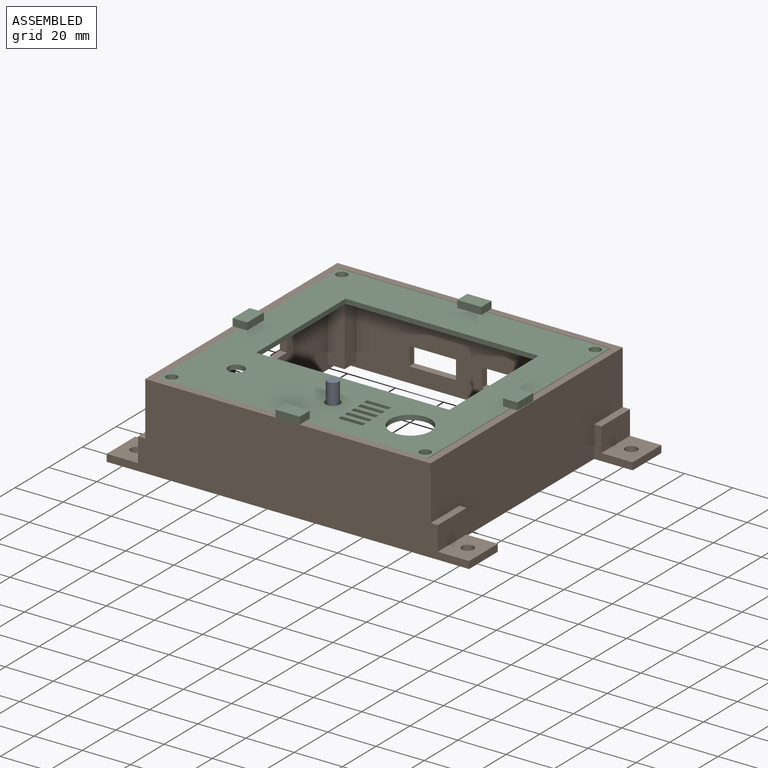
[diagram: assembled view]
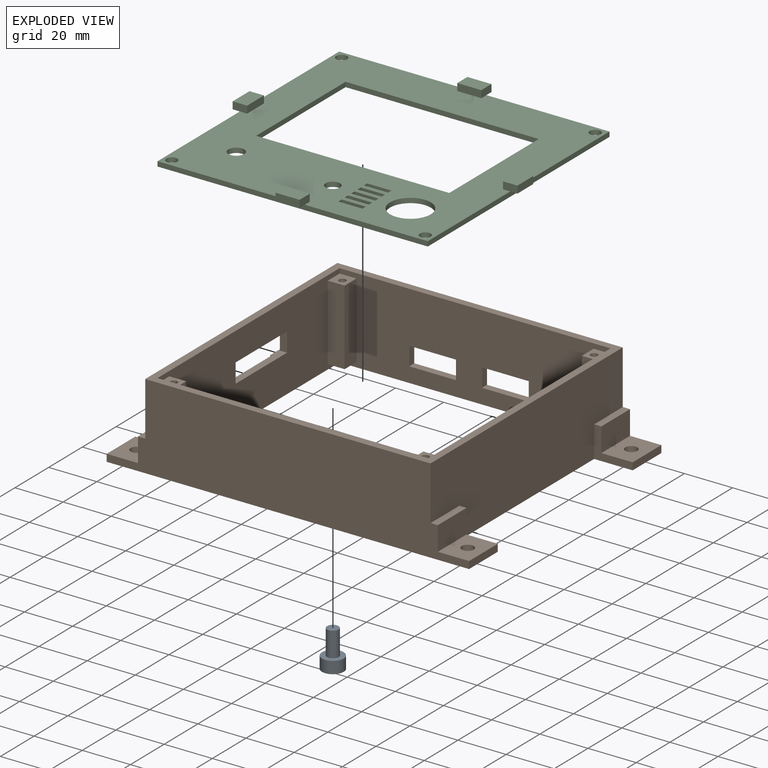
[diagram: exploded view]
GUIDED TOUR — MATED ASSEMBLY (Onshape document 442986f70ca245d1ac6d4e2b, AutoMate assembly 442986f70ca245d1ac6d4e2b_402701deb49ca6270d49aa02_2382e2a612e0fbf93cd27774_default)

This assembly has 3 components, labeled P0..P2 below (a component is one placed occurrence of a part; the same part can appear more than once), held together by 2 mates. A mate is a constraint between two components; its type names the relative motion it leaves free:
  PARALLEL — keeps the two listed directions parallel.
Axis/direction vectors are unit vectors and 'through' points are millimeter coordinates, both in the assembly's world frame.

MATES
  1. PARALLEL "Top Cover to case-Parallel 1": P2 <-> P1, direction (0.000, 0.000, 1.000) through (-104.29, -60.68, 34.66) mm
  2. PARALLEL "Parallel 2": P0 <-> P2, direction (0.000, 0.000, 1.000) through (-44.29, -42.38, 32.66) mm

ASSEMBLY ORDER
  1. P1 — the base component [order verified]
  2. P2 [order verified]
  3. P0 [order verified]
Order-tag legend:
  [order verified] — this step's position reverses a verified removal order: the component was checked to insert without passing through the ones already placed.

Of the 3 components, 3 carry the full construction recipe — the FeatureScript program that regenerates the part's solid from scratch; the rest are supplied as boundary geometry only.
Each toured component is shown spotlighted twice — in the assembled view, then in the exploded view, where a leader line traces a displaced component back to its assembled socket (saturated green if recipe-attached, orange if geometry-only; every other component desaturated gray) — followed by its recipe or geometry summary and the mates that hold it.
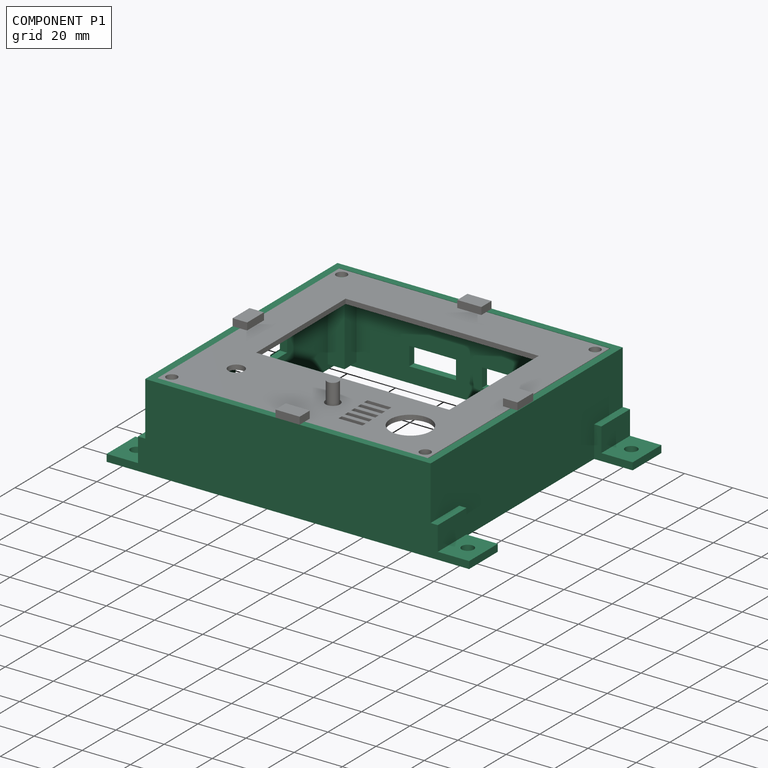
[diagram: component P1 — assembled]
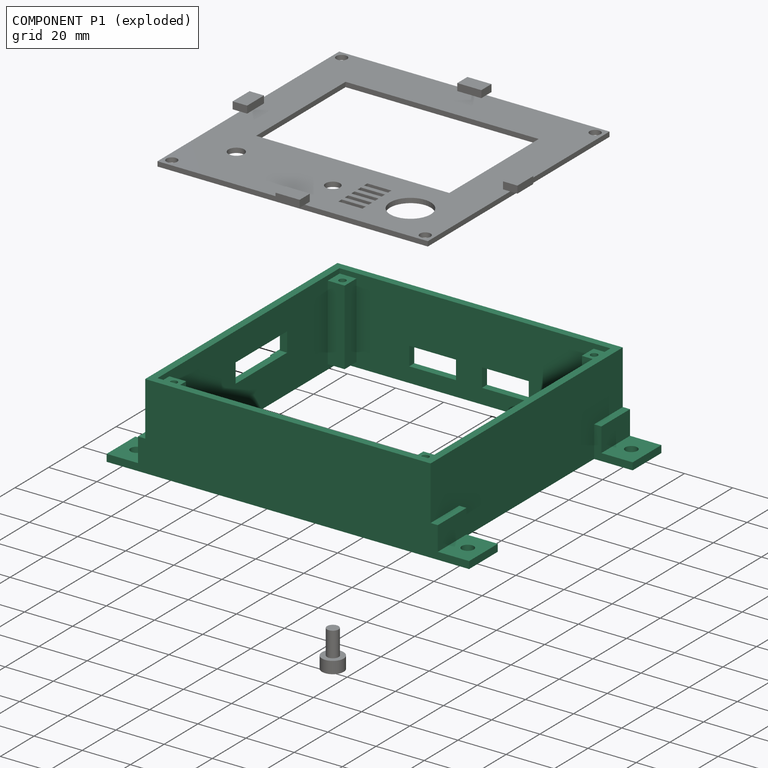
[diagram: component P1 — exploded]
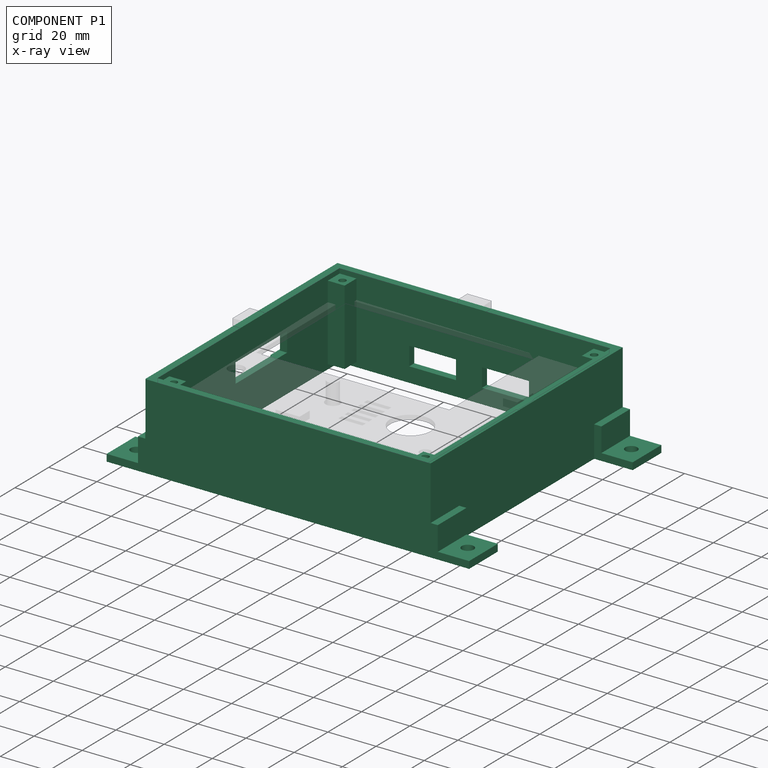
[diagram: component P1 — x-ray view]
COMPONENT P1 — recipe-attached (CADFS 00519487, mesh-verified: the recipe's output STEP matches this component's geometry to below the mesh-comparison resolution (tessellation chordal tolerance ~0.288 mm)).
Held by: PARALLEL mate "Top Cover to case-Parallel 1" to P2.
Construction recipe (FeatureScript — the CAD program that rebuilds this solid; sketch coordinates are in the units given by the * unit suffixes, e.g. mm):

FeatureScript 2581;
import(path : "onshape/std/geometry.fs", version : "2581.0");
import(path : "onshape/std/common.fs", version : "2581.0");
const mm = millimeter;
const VERTEX = EntityType.VERTEX;
const EDGE = EntityType.EDGE;
const FACE = EntityType.FACE;
const BODY = EntityType.BODY;
function v(x, y){return vector(x, y);}
function OD(order){return orderDisambiguation(order);}
function OSD(set){return originalSetDisambiguation(set);}
function TD(topology){return topologyDisambiguation(topology);}
function TDD(query){return trueDependencyDisambiguation(query);}
function sQuery(a, b, c) {return sketchEntityQuery(a, b, c);}

annotation { "Feature Type Name" : "Feature", "Feature Type Description" : "" }
export const myFeature = defineFeature(function(context is Context, id is Id, definition is map)
    precondition{}
    {
        {
            var Q0;
            Q0=qCreatedBy(makeId("Top.planeOp"),FACE);
            var sketch = newSketch(context, id + "F0", { "sketchPlane" : qUnion([Q0])});
            skLineSegment(sketch, "E0.bottom", {"start": v(0, 0) * mm, "end": v(112.5, 0) * mm});
            skLineSegment(sketch, "E0.top", {"start": v(0, 108) * mm, "end": v(112.5, 108) * mm});
            skLineSegment(sketch, "E0.left", {"start": v(0, 0) * mm, "end": v(0, 108) * mm});
            skLineSegment(sketch, "E0.right", {"start": v(112.5, 0) * mm, "end": v(112.5, 108) * mm});
            skLineSegment(sketch, "E1.bottom", {"start": v(-3, -3) * mm, "end": v(115.5, -3) * mm});
            skLineSegment(sketch, "E1.top", {"start": v(-3, 111) * mm, "end": v(115.5, 111) * mm});
            skLineSegment(sketch, "E1.left", {"start": v(-3, -3) * mm, "end": v(-3, 111) * mm});
            skLineSegment(sketch, "E1.right", {"start": v(115.5, -3) * mm, "end": v(115.5, 111) * mm});
            skSolve(sketch);
        }
        {
            var Q0;
            Q0 = qSketchRegion(id + "F0", true);
            var Q1;
            Q1=makeQuery(id+"F0.imprint","IMPRINT",FACE,{"disambiguationData":[TD([[makeQuery(id+"F0.imprint","IMPRINT",EDGE,{"derivedFrom":sQuery(id+"F0.wireOp",EDGE,"5UW27vY8-DZkX-9mT5-oeWg-O9DarPSECfU4.bottom")}),-1.0]])]});
            var Q2;
            Q2=makeQuery(id+"F0.imprint","IMPRINT",FACE,{"disambiguationData":[TD([[makeQuery(id+"F0.imprint","IMPRINT",EDGE,{"derivedFrom":sQuery(id+"F0.wireOp",EDGE,"emjWjVMJ-dW8g-Ee0e-WItk-pn7yrFhIKDN6.bottom")}),1.0]])]});
            var Q3;
            Q3=makeQuery(id+"F0.imprint","IMPRINT",FACE,{"disambiguationData":[TD([[makeQuery(id+"F0.imprint","IMPRINT",EDGE,{"derivedFrom":sQuery(id+"F0.wireOp",EDGE,"Jp5ZSupj-YRPa-vJQM-HpLv-n2ZM76CLiCyT.bottom")}),1.0]])]});
            var Q4;
            Q4=makeQuery(id+"F0.imprint","IMPRINT",FACE,{"disambiguationData":[TD([[makeQuery(id+"F0.imprint","IMPRINT",EDGE,{"derivedFrom":sQuery(id+"F0.wireOp",EDGE,"ox3d0DqL-n6A3-UaFx-j0JZ-jM5fEP68q14y.bottom")}),-1.0]])]});
            extrude(context, id + "F1", {"entities" : qUnion([Q0, Q1, Q2, Q3, Q4]), "depth" : 35.36 * mm, "offsetDistance" : 25 * mm});
        }
        {
            var Q0;
            Q0=makeQuery(id+"F1.opExtrude","CAP_FACE",FACE,{"disambiguationData":[OSD([sQuery(id+"F0.wireOp",EDGE,"E0.bottom"),sQuery(id+"F0.wireOp",EDGE,"E0.top"),sQuery(id+"F0.wireOp",EDGE,"E0.left"),sQuery(id+"F0.wireOp",EDGE,"E0.right"),sQuery(id+"F0.wireOp",EDGE,"E1.bottom"),sQuery(id+"F0.wireOp",EDGE,"E1.top"),sQuery(id+"F0.wireOp",EDGE,"E1.left"),sQuery(id+"F0.wireOp",EDGE,"E1.right")])],"isStart":false});
            var sketch = newSketch(context, id + "F2", { "sketchPlane" : qUnion([Q0])});
            skLineSegment(sketch, "E2.bottom", {"start": v(0, 108) * mm, "end": v(7, 108) * mm});
            skLineSegment(sketch, "E2.top", {"start": v(0, 101) * mm, "end": v(7, 101) * mm});
            skLineSegment(sketch, "E2.left", {"start": v(0, 108) * mm, "end": v(0, 101) * mm});
            skLineSegment(sketch, "E2.right", {"start": v(7, 108) * mm, "end": v(7, 101) * mm});
            skLineSegment(sketch, "E3.bottom", {"start": v(112.5, 108) * mm, "end": v(105.5, 108) * mm});
            skLineSegment(sketch, "E3.top", {"start": v(112.5, 101) * mm, "end": v(105.5, 101) * mm});
            skLineSegment(sketch, "E3.left", {"start": v(112.5, 108) * mm, "end": v(112.5, 101) * mm});
            skLineSegment(sketch, "E3.right", {"start": v(105.5, 108) * mm, "end": v(105.5, 101) * mm});
            skLineSegment(sketch, "E4.bottom", {"start": v(112.5, 0) * mm, "end": v(105.5, 0) * mm});
            skLineSegment(sketch, "E4.top", {"start": v(112.5, 7) * mm, "end": v(105.5, 7) * mm});
            skLineSegment(sketch, "E4.left", {"start": v(112.5, 0) * mm, "end": v(112.5, 7) * mm});
            skLineSegment(sketch, "E4.right", {"start": v(105.5, 0) * mm, "end": v(105.5, 7) * mm});
            skLineSegment(sketch, "E5.bottom", {"start": v(0, 0) * mm, "end": v(7, 0) * mm});
            skLineSegment(sketch, "E5.top", {"start": v(0, 7) * mm, "end": v(7, 7) * mm});
            skLineSegment(sketch, "E5.left", {"start": v(0, 0) * mm, "end": v(0, 7) * mm});
            skLineSegment(sketch, "E5.right", {"start": v(7, 0) * mm, "end": v(7, 7) * mm});
            skSolve(sketch);
        }
        {
            var Q0;
            Q0=makeQuery(id+"F2.imprint","IMPRINT",FACE,{"disambiguationData":[TD([[makeQuery(id+"F2.imprint","IMPRINT",EDGE,{"derivedFrom":sQuery(id+"F2.wireOp",EDGE,"E2.bottom")}),-1.0]])]});
            var Q1;
            Q1=makeQuery(id+"F2.imprint","IMPRINT",FACE,{"disambiguationData":[TD([[makeQuery(id+"F2.imprint","IMPRINT",EDGE,{"derivedFrom":sQuery(id+"F2.wireOp",EDGE,"E3.bottom")}),-1.0]])]});
            var Q2;
            Q2=makeQuery(id+"F2.imprint","IMPRINT",FACE,{"disambiguationData":[TD([[makeQuery(id+"F2.imprint","IMPRINT",EDGE,{"derivedFrom":sQuery(id+"F2.wireOp",EDGE,"E4.bottom")}),1.0]])]});
            var Q3;
            Q3=makeQuery(id+"F2.imprint","IMPRINT",FACE,{"disambiguationData":[TD([[makeQuery(id+"F2.imprint","IMPRINT",EDGE,{"derivedFrom":sQuery(id+"F2.wireOp",EDGE,"E5.bottom")}),1.0]])]});
            extrude(context, id + "F3", {"entities" : qUnion([Q0, Q1, Q2, Q3]), "operationType" : NewBodyOperationType.ADD, "oppositeDirection" : true, "depth" : 33.36 * mm, "offsetDistance" : 25 * mm, "hasSecondDirection" : true, "secondDirectionOppositeDirection" : true, "secondDirectionDepth" : 2 * mm});
        }
        {
            var Q0;
            Q0=makeQuery(id+"F3.opExtrude","CAP_FACE",FACE,{"disambiguationData":[OSD([sQuery(id+"F2.wireOp",EDGE,"E2.bottom"),sQuery(id+"F2.wireOp",EDGE,"E2.top"),sQuery(id+"F2.wireOp",EDGE,"E2.left"),sQuery(id+"F2.wireOp",EDGE,"E2.right")])],"isStart":true});
            var sketch = newSketch(context, id + "F4", { "sketchPlane" : qUnion([Q0])});
            skCircle(sketch, "E6", {"center": v(4, 104) * mm, "radius": 1.45 * mm});
            skCircle(sketch, "E7", {"center": v(108.5, 104) * mm, "radius": 1.45 * mm});
            skCircle(sketch, "E8", {"center": v(4, 4) * mm, "radius": 1.45 * mm});
            skCircle(sketch, "E9", {"center": v(108.5, 4) * mm, "radius": 1.45 * mm});
            skSolve(sketch);
        }
        {
            var Q0;
            Q0=makeQuery(id+"F4.imprint","IMPRINT",FACE,{"disambiguationData":[TD([[makeQuery(id+"F4.imprint","IMPRINT",EDGE,{"derivedFrom":sQuery(id+"F4.wireOp",EDGE,"E6")}),1.0]])]});
            var Q1;
            Q1=makeQuery(id+"F4.imprint","IMPRINT",FACE,{"disambiguationData":[TD([[makeQuery(id+"F4.imprint","IMPRINT",EDGE,{"derivedFrom":sQuery(id+"F4.wireOp",EDGE,"E7")}),1.0]])]});
            var Q2;
            Q2=makeQuery(id+"F4.imprint","IMPRINT",FACE,{"disambiguationData":[TD([[makeQuery(id+"F4.imprint","IMPRINT",EDGE,{"derivedFrom":sQuery(id+"F4.wireOp",EDGE,"E8")}),1.0]])]});
            var Q3;
            Q3=makeQuery(id+"F4.imprint","IMPRINT",FACE,{"disambiguationData":[TD([[makeQuery(id+"F4.imprint","IMPRINT",EDGE,{"derivedFrom":sQuery(id+"F4.wireOp",EDGE,"E9")}),1.0]])]});
            extrude(context, id + "F5", {"entities" : qUnion([Q0, Q1, Q2, Q3]), "operationType" : NewBodyOperationType.REMOVE, "endBound" : BoundingType.THROUGH_ALL, "oppositeDirection" : true, "depth" : 25 * mm, "offsetDistance" : 25 * mm});
        }
        {
            var Q0;
            Q0=makeQuery(id+"F1.opExtrude","SWEPT_FACE",FACE,{"disambiguationData":[OSD([sQuery(id+"F0.wireOp",EDGE,"E1.left")])]});
            var sketch = newSketch(context, id + "F6", { "sketchPlane" : qUnion([Q0])});
            skLineSegment(sketch, "E10.bottom", {"start": v(-76.87, 23.54) * mm, "end": v(-46.36, 23.54) * mm});
            skLineSegment(sketch, "E10.top", {"start": v(-76.87, 15.54) * mm, "end": v(-46.36, 15.54) * mm});
            skLineSegment(sketch, "E10.left", {"start": v(-76.87, 23.54) * mm, "end": v(-76.87, 15.54) * mm});
            skLineSegment(sketch, "E10.right", {"start": v(-46.36, 23.54) * mm, "end": v(-46.36, 15.54) * mm});
            skSolve(sketch);
        }
        {
            var Q0;
            Q0=makeQuery(id+"F6.imprint","IMPRINT",FACE,{"disambiguationData":[TD([[makeQuery(id+"F6.imprint","IMPRINT",EDGE,{"derivedFrom":sQuery(id+"F6.wireOp",EDGE,"E10.bottom")}),-1.0]])]});
            extrude(context, id + "F7", {"entities" : qUnion([Q0]), "operationType" : NewBodyOperationType.REMOVE, "endBound" : BoundingType.UP_TO_NEXT, "oppositeDirection" : true, "depth" : 3 * mm, "offsetDistance" : 25 * mm});
        }
        {
            var Q0;
            Q0=makeQuery(id+"F1.opExtrude","SWEPT_FACE",FACE,{"disambiguationData":[OSD([sQuery(id+"F0.wireOp",EDGE,"E1.top")])]});
            var sketch = newSketch(context, id + "F8", { "sketchPlane" : qUnion([Q0])});
            skLineSegment(sketch, "E11.bottom", {"start": v(-48.32, 13.96) * mm, "end": v(-28.92, 13.96) * mm});
            skLineSegment(sketch, "E11.top", {"start": v(-48.32, 6.26) * mm, "end": v(-28.92, 6.26) * mm});
            skLineSegment(sketch, "E11.left", {"start": v(-48.32, 13.96) * mm, "end": v(-48.32, 6.26) * mm});
            skLineSegment(sketch, "E11.right", {"start": v(-28.92, 13.96) * mm, "end": v(-28.92, 6.26) * mm});
            skLineSegment(sketch, "E12.bottom", {"start": v(-78.53, 13.96) * mm, "end": v(-59.13, 13.96) * mm});
            skLineSegment(sketch, "E12.top", {"start": v(-78.53, 6.26) * mm, "end": v(-59.13, 6.26) * mm});
            skLineSegment(sketch, "E12.left", {"start": v(-78.53, 13.96) * mm, "end": v(-78.53, 6.26) * mm});
            skLineSegment(sketch, "E12.right", {"start": v(-59.13, 13.96) * mm, "end": v(-59.13, 6.26) * mm});
            skSolve(sketch);
        }
        {
            var Q0;
            Q0=makeQuery(id+"F8.imprint","IMPRINT",FACE,{"disambiguationData":[TD([[makeQuery(id+"F8.imprint","IMPRINT",EDGE,{"derivedFrom":sQuery(id+"F8.wireOp",EDGE,"E12.bottom")}),-1.0]])]});
            var Q1;
            Q1=makeQuery(id+"F8.imprint","IMPRINT",FACE,{"disambiguationData":[TD([[makeQuery(id+"F8.imprint","IMPRINT",EDGE,{"derivedFrom":sQuery(id+"F8.wireOp",EDGE,"E11.bottom")}),-1.0]])]});
            extrude(context, id + "F9", {"entities" : qUnion([Q0, Q1]), "operationType" : NewBodyOperationType.REMOVE, "oppositeDirection" : true, "depth" : 3 * mm, "offsetDistance" : 25 * mm});
        }
        {
            var Q0;
            Q0=makeQuery(id+"F1.opExtrude","SWEPT_FACE",FACE,{"disambiguationData":[OSD([sQuery(id+"F0.wireOp",EDGE,"E1.bottom")])]});
            var sketch = newSketch(context, id + "F10", { "sketchPlane" : qUnion([Q0])});
            skLineSegment(sketch, "E13", {"start": v(-19, 3) * mm, "end": v(-6, 3) * mm});
            skLineSegment(sketch, "E14", {"start": v(-6, 3) * mm, "end": v(-6, 13) * mm});
            skLineSegment(sketch, "E15", {"start": v(-6, 13) * mm, "end": v(-3, 13) * mm});
            skLineSegment(sketch, "E16", {"start": v(-19, 3) * mm, "end": v(-19, 0) * mm});
            skLineSegment(sketch, "E17", {"start": v(-19, 0) * mm, "end": v(-3, 0) * mm});
            skLineSegment(sketch, "E18", {"start": v(-3, 13) * mm, "end": v(-3, 0) * mm});
            skSolve(sketch);
        }
        {
            var Q0;
            Q0=makeQuery(id+"F10.imprint","IMPRINT",FACE,{"disambiguationData":[TD([[makeQuery(id+"F10.imprint","IMPRINT",EDGE,{"derivedFrom":sQuery(id+"F10.wireOp",EDGE,"E13")}),-1.0]])]});
            extrude(context, id + "F11", {"entities" : qUnion([Q0]), "operationType" : NewBodyOperationType.ADD, "oppositeDirection" : true, "depth" : 114 * mm, "offsetDistance" : 25 * mm});
        }
        {
            var Q0;
            Q0=makeQuery(id+"F11.boolean.opBoolean","MERGE",FACE,{"derivedFrom":[makeQuery(id+"F1.opExtrude","SWEPT_FACE",FACE,{"disambiguationData":[OSD([sQuery(id+"F0.wireOp",EDGE,"E1.bottom")])]}),makeQuery(id+"F11.opExtrude","CAP_FACE",FACE,{"disambiguationData":[OSD([sQuery(id+"F10.wireOp",EDGE,"E13"),sQuery(id+"F10.wireOp",EDGE,"E14"),sQuery(id+"F10.wireOp",EDGE,"E15"),sQuery(id+"F10.wireOp",EDGE,"E16"),sQuery(id+"F10.wireOp",EDGE,"E17"),sQuery(id+"F10.wireOp",EDGE,"E18")])],"isStart":true})]});
            var sketch = newSketch(context, id + "F12", { "sketchPlane" : qUnion([Q0])});
            skLineSegment(sketch, "E19", {"start": v(115.5, 13) * mm, "end": v(115.5, 0) * mm});
            skLineSegment(sketch, "E20", {"start": v(115.5, 0) * mm, "end": v(131.5, 0) * mm});
            skLineSegment(sketch, "E21", {"start": v(131.5, 0) * mm, "end": v(131.5, 3) * mm});
            skLineSegment(sketch, "E22", {"start": v(131.5, 3) * mm, "end": v(118.5, 3) * mm});
            skLineSegment(sketch, "E23", {"start": v(118.5, 3) * mm, "end": v(118.5, 13) * mm});
            skLineSegment(sketch, "E24", {"start": v(118.5, 13) * mm, "end": v(115.5, 13) * mm});
            skSolve(sketch);
        }
        {
            var Q0;
            Q0=makeQuery(id+"F12.imprint","IMPRINT",FACE,{"disambiguationData":[TD([[makeQuery(id+"F12.imprint","IMPRINT",EDGE,{"derivedFrom":sQuery(id+"F12.wireOp",EDGE,"E19")}),1.0]])]});
            extrude(context, id + "F13", {"entities" : qUnion([Q0]), "operationType" : NewBodyOperationType.ADD, "oppositeDirection" : true, "depth" : 114 * mm, "offsetDistance" : 25 * mm});
        }
        {
            var Q0;
            Q0=makeQuery(id+"F13.boolean.opBoolean","MERGE",FACE,{"derivedFrom":[makeQuery(id+"F11.boolean.opBoolean","MERGE",FACE,{"derivedFrom":[makeQuery(id+"F1.opExtrude","CAP_FACE",FACE,{"disambiguationData":[OSD([sQuery(id+"F0.wireOp",EDGE,"E0.bottom"),sQuery(id+"F0.wireOp",EDGE,"E0.top"),sQuery(id+"F0.wireOp",EDGE,"E0.left"),sQuery(id+"F0.wireOp",EDGE,"E0.right"),sQuery(id+"F0.wireOp",EDGE,"E1.bottom"),sQuery(id+"F0.wireOp",EDGE,"E1.top"),sQuery(id+"F0.wireOp",EDGE,"E1.left"),sQuery(id+"F0.wireOp",EDGE,"E1.right")])],"isStart":true}),makeQuery(id+"F11.opExtrude","SWEPT_FACE",FACE,{"disambiguationData":[OSD([sQuery(id+"F10.wireOp",EDGE,"E17")])]})]}),makeQuery(id+"F13.opExtrude","SWEPT_FACE",FACE,{"disambiguationData":[OSD([sQuery(id+"F12.wireOp",EDGE,"E20")])]})]});
            var sketch = newSketch(context, id + "F14", { "sketchPlane" : qUnion([Q0])});
            skSolve(sketch);
        }
        {
            var Q0;
            Q0=makeQuery(id+"F14.imprint","IMPRINT",FACE,{"disambiguationData":[TD([[makeQuery(id+"F14.imprint","IMPRINT",EDGE,{"derivedFrom":makeQuery(id+"F1.opExtrude","CAP_EDGE",EDGE,{"disambiguationData":[OSD([sQuery(id+"F0.wireOp",EDGE,"E0.bottom")])],"isStart":true})}),1.0]])]});
            var sketch = newSketch(context, id + "F15", { "sketchPlane" : qUnion([Q0])});
            skLineSegment(sketch, "E25.bottom", {"start": v(-19, -14) * mm, "end": v(-3, -14) * mm});
            skLineSegment(sketch, "E25.top", {"start": v(-19, -94) * mm, "end": v(-3, -94) * mm});
            skLineSegment(sketch, "E25.left", {"start": v(-19, -14) * mm, "end": v(-19, -94) * mm});
            skLineSegment(sketch, "E25.right", {"start": v(-3, -14) * mm, "end": v(-3, -94) * mm});
            skSolve(sketch);
        }
        {
            var Q0;
            Q0 = qSketchRegion(id + "F15", true);
            extrude(context, id + "F16", {"entities" : qUnion([Q0]), "operationType" : NewBodyOperationType.REMOVE, "endBound" : BoundingType.THROUGH_ALL, "oppositeDirection" : true, "depth" : 25 * mm, "offsetDistance" : 25 * mm});
        }
        {
            var Q0;
            Q0=makeQuery(id+"F14.imprint","IMPRINT",FACE,{"disambiguationData":[TD([[makeQuery(id+"F14.imprint","IMPRINT",EDGE,{"derivedFrom":makeQuery(id+"F1.opExtrude","CAP_EDGE",EDGE,{"disambiguationData":[OSD([sQuery(id+"F0.wireOp",EDGE,"E0.bottom")])],"isStart":true})}),1.0]])]});
            var sketch = newSketch(context, id + "F17", { "sketchPlane" : qUnion([Q0])});
            skLineSegment(sketch, "E26.bottom", {"start": v(115.5, -14) * mm, "end": v(131.5, -14) * mm});
            skLineSegment(sketch, "E26.top", {"start": v(115.5, -94) * mm, "end": v(131.5, -94) * mm});
            skLineSegment(sketch, "E26.left", {"start": v(115.5, -14) * mm, "end": v(115.5, -94) * mm});
            skLineSegment(sketch, "E26.right", {"start": v(131.5, -14) * mm, "end": v(131.5, -94) * mm});
            skSolve(sketch);
        }
        {
            var Q0;
            Q0 = qSketchRegion(id + "F17", true);
            extrude(context, id + "F18", {"entities" : qUnion([Q0]), "operationType" : NewBodyOperationType.REMOVE, "endBound" : BoundingType.THROUGH_ALL, "oppositeDirection" : true, "depth" : 25 * mm, "offsetDistance" : 25 * mm});
        }
        {
            var Q0;
            {var subQ2=sQuery(id+"F10.wireOp",EDGE,"E13");Q0=makeQuery(id+"F16.boolean.opBoolean","SPLIT",FACE,{"disambiguationData":[TD([makeQuery(id+"F1.opExtrude","SWEPT_FACE",FACE,{"disambiguationData":[OSD([sQuery(id+"F0.wireOp",EDGE,"E1.top")])]})])],"derivedFrom":makeQuery(id+"F11.opExtrude","SWEPT_FACE",FACE,{"disambiguationData":[OSD([subQ2])]})});}
            var sketch = newSketch(context, id + "F19", { "sketchPlane" : qUnion([Q0])});
            skCircle(sketch, "E27", {"center": v(-12.5, 102.5) * mm, "radius": 2.5 * mm});
            skCircle(sketch, "E28", {"center": v(125, 102.5) * mm, "radius": 2.5 * mm});
            skCircle(sketch, "E29", {"center": v(125, 5.5) * mm, "radius": 2.5 * mm});
            skCircle(sketch, "E30", {"center": v(-12.5, 5.5) * mm, "radius": 2.5 * mm});
            skSolve(sketch);
        }
        {
            var Q0;
            Q0=makeQuery(id+"F19.imprint","IMPRINT",FACE,{"disambiguationData":[TD([[makeQuery(id+"F19.imprint","IMPRINT",EDGE,{"derivedFrom":sQuery(id+"F19.wireOp",EDGE,"E27")}),1.0]])]});
            var Q1;
            Q1=makeQuery(id+"F19.imprint","IMPRINT",FACE,{"disambiguationData":[TD([[makeQuery(id+"F19.imprint","IMPRINT",EDGE,{"derivedFrom":sQuery(id+"F19.wireOp",EDGE,"E28")}),1.0]])]});
            var Q2;
            Q2=makeQuery(id+"F19.imprint","IMPRINT",FACE,{"disambiguationData":[TD([[makeQuery(id+"F19.imprint","IMPRINT",EDGE,{"derivedFrom":sQuery(id+"F19.wireOp",EDGE,"E29")}),1.0]])]});
            var Q3;
            Q3=makeQuery(id+"F19.imprint","IMPRINT",FACE,{"disambiguationData":[TD([[makeQuery(id+"F19.imprint","IMPRINT",EDGE,{"derivedFrom":sQuery(id+"F19.wireOp",EDGE,"E30")}),1.0]])]});
            extrude(context, id + "F20", {"entities" : qUnion([Q0, Q1, Q2, Q3]), "operationType" : NewBodyOperationType.REMOVE, "endBound" : BoundingType.THROUGH_ALL, "oppositeDirection" : true, "depth" : 25 * mm, "offsetDistance" : 25 * mm});
        }
    });
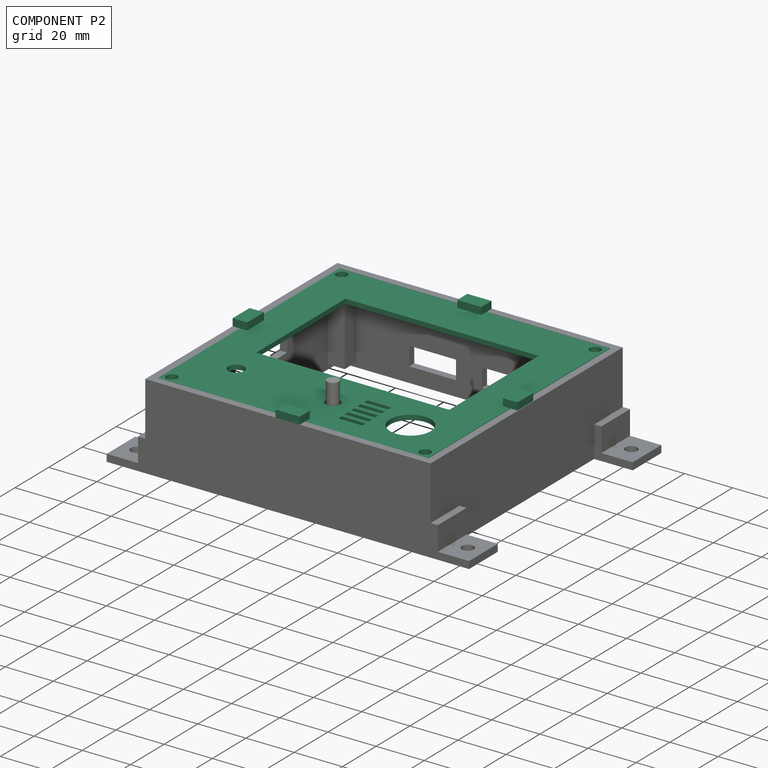
[diagram: component P2 — assembled]
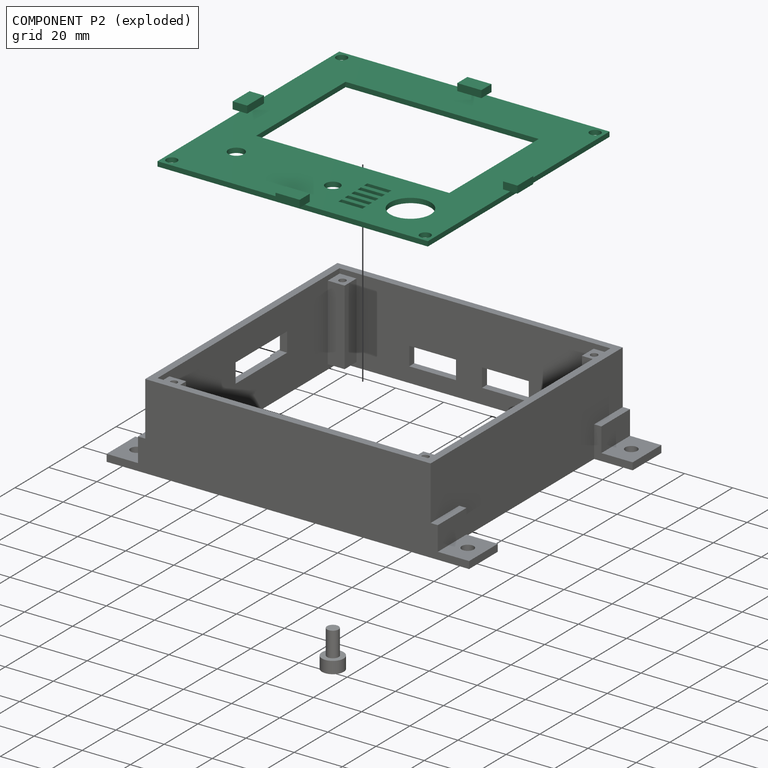
[diagram: component P2 — exploded]
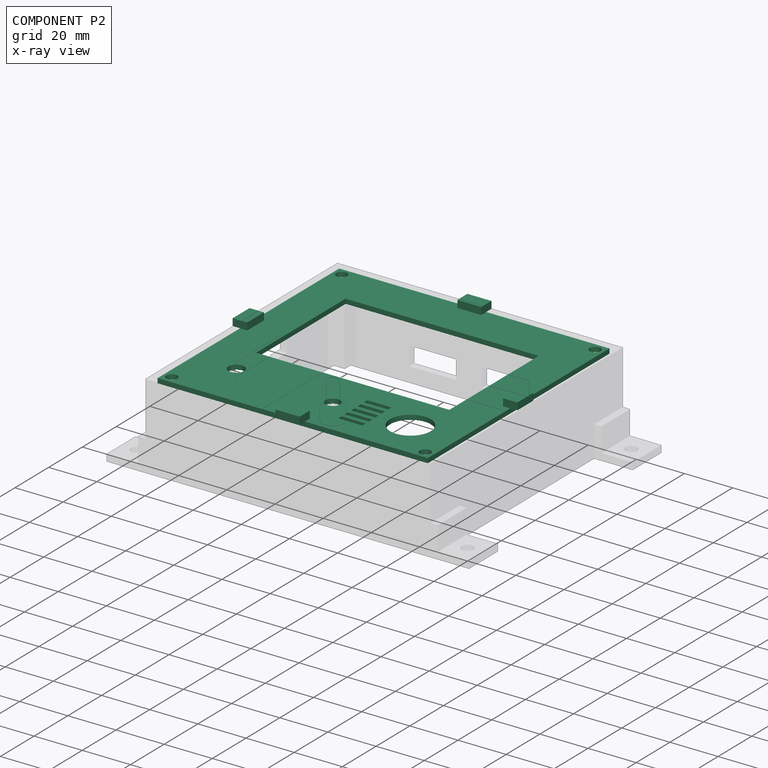
[diagram: component P2 — x-ray view]
COMPONENT P2 — recipe-attached (CADFS 00523514, mesh-verified: the recipe's output STEP matches this component's geometry to below the mesh-comparison resolution (tessellation chordal tolerance ~0.246 mm)).
Held by: PARALLEL mate "Top Cover to case-Parallel 1" to P1; PARALLEL mate "Parallel 2" to P0.
Construction recipe (FeatureScript — the CAD program that rebuilds this solid; sketch coordinates are in the units given by the * unit suffixes, e.g. mm):

FeatureScript 2180;
import(path : "onshape/std/geometry.fs", version : "2180.0");
import(path : "onshape/std/common.fs", version : "2180.0");
const mm = millimeter;
const VERTEX = EntityType.VERTEX;
const EDGE = EntityType.EDGE;
const FACE = EntityType.FACE;
const BODY = EntityType.BODY;
function v(x, y){return vector(x, y);}
function OD(order){return orderDisambiguation(order);}
function OSD(set){return originalSetDisambiguation(set);}
function TD(topology){return topologyDisambiguation(topology);}
function TDD(query){return trueDependencyDisambiguation(query);}
function sQuery(a, b, c) {return sketchEntityQuery(a, b, c);}

annotation { "Feature Type Name" : "Feature", "Feature Type Description" : "" }
export const myFeature = defineFeature(function(context is Context, id is Id, definition is map)
    precondition{}
    {
        {
            var Q0;
            Q0=qCreatedBy(makeId("Top.planeOp"),FACE);
            var sketch = newSketch(context, id + "F0", { "sketchPlane" : qUnion([Q0])});
            skLineSegment(sketch, "E0.bottom", {"start": v(0, 0) * mm, "end": v(112.25, 0) * mm});
            skLineSegment(sketch, "E0.top", {"start": v(0, 107.75) * mm, "end": v(112.25, 107.75) * mm});
            skLineSegment(sketch, "E0.left", {"start": v(0, 0) * mm, "end": v(0, 107.75) * mm});
            skLineSegment(sketch, "E0.right", {"start": v(112.25, 0) * mm, "end": v(112.25, 107.75) * mm});
            skCircle(sketch, "E1", {"center": v(3.5, 104.25) * mm, "radius": 2.25 * mm});
            skCircle(sketch, "E2", {"center": v(108.75, 104.25) * mm, "radius": 2.25 * mm});
            skCircle(sketch, "E3", {"center": v(3.5, 3.5) * mm, "radius": 2.25 * mm});
            skCircle(sketch, "E4", {"center": v(108.75, 3.5) * mm, "radius": 2.25 * mm});
            skLineSegment(sketch, "E5.bottom", {"start": v(15.75, 89.05) * mm, "end": v(95.97, 89.05) * mm});
            skLineSegment(sketch, "E5.top", {"start": v(15.75, 36) * mm, "end": v(95.97, 36) * mm});
            skLineSegment(sketch, "E5.left", {"start": v(15.75, 89.05) * mm, "end": v(15.75, 36) * mm});
            skLineSegment(sketch, "E5.right", {"start": v(95.97, 89.05) * mm, "end": v(95.97, 36) * mm});
            skCircle(sketch, "E6", {"center": v(92.23, 18.3) * mm, "radius": 8.45 * mm});
            skCircle(sketch, "E7", {"center": v(60, 18.3) * mm, "radius": 3 * mm});
            skCircle(sketch, "E8", {"center": v(17.59, 21.63) * mm, "radius": 3.28 * mm});
            skLineSegment(sketch, "E9.bottom", {"start": v(68.73, 26.3) * mm, "end": v(78.73, 26.3) * mm});
            skLineSegment(sketch, "E9.top", {"start": v(68.73, 24.3) * mm, "end": v(78.73, 24.3) * mm});
            skLineSegment(sketch, "E9.left", {"start": v(68.73, 26.3) * mm, "end": v(68.73, 24.3) * mm});
            skLineSegment(sketch, "E9.right", {"start": v(78.73, 26.3) * mm, "end": v(78.73, 24.3) * mm});
            skLineSegment(sketch, "E10.1.0.0", {"start": v(78.8, 22.4) * mm, "end": v(78.8, 20.4) * mm});
            skLineSegment(sketch, "E10.1.0.1", {"start": v(68.8, 22.4) * mm, "end": v(68.8, 20.4) * mm});
            skLineSegment(sketch, "E10.1.0.2", {"start": v(68.8, 22.4) * mm, "end": v(78.8, 22.4) * mm});
            skLineSegment(sketch, "E10.1.0.3", {"start": v(68.8, 20.4) * mm, "end": v(78.8, 20.4) * mm});
            skLineSegment(sketch, "E10.2.0.0", {"start": v(78.87, 18.5) * mm, "end": v(78.87, 16.5) * mm});
            skLineSegment(sketch, "E10.2.0.1", {"start": v(68.87, 18.5) * mm, "end": v(68.87, 16.5) * mm});
            skLineSegment(sketch, "E10.2.0.2", {"start": v(68.87, 18.5) * mm, "end": v(78.87, 18.5) * mm});
            skLineSegment(sketch, "E10.2.0.3", {"start": v(68.87, 16.5) * mm, "end": v(78.87, 16.5) * mm});
            skLineSegment(sketch, "E10.3.0.0", {"start": v(78.93, 14.62) * mm, "end": v(78.93, 12.62) * mm});
            skLineSegment(sketch, "E10.3.0.1", {"start": v(68.93, 14.62) * mm, "end": v(68.93, 12.62) * mm});
            skLineSegment(sketch, "E10.3.0.2", {"start": v(68.93, 14.62) * mm, "end": v(78.93, 14.62) * mm});
            skLineSegment(sketch, "E10.3.0.3", {"start": v(68.93, 12.62) * mm, "end": v(78.93, 12.62) * mm});
            skLineSegment(sketch, "E10.4.0.0", {"start": v(79, 10.73) * mm, "end": v(79, 8.73) * mm});
            skLineSegment(sketch, "E10.4.0.1", {"start": v(69, 10.73) * mm, "end": v(69, 8.73) * mm});
            skLineSegment(sketch, "E10.4.0.2", {"start": v(69, 10.73) * mm, "end": v(79, 10.73) * mm});
            skLineSegment(sketch, "E10.4.0.3", {"start": v(69, 8.73) * mm, "end": v(79, 8.73) * mm});
            skLineSegment(sketch, "E10.direction1", {"start": v(68.73, 24.3) * mm, "end": v(68.8, 20.4) * mm, "construction": true});
            skSolve(sketch);
        }
        {
            var Q0;
            Q0 = qSketchRegion(id + "F0", true);
            extrude(context, id + "F1", {"entities" : qUnion([Q0]), "depth" : 2 * mm, "offsetDistance" : 25 * mm});
        }
        {
            var Q0;
            Q0=makeQuery(id+"F1.opExtrude","CAP_FACE",FACE,{"disambiguationData":[OSD([sQuery(id+"F0.wireOp",EDGE,"E0.bottom"),sQuery(id+"F0.wireOp",EDGE,"E0.top"),sQuery(id+"F0.wireOp",EDGE,"E0.left"),sQuery(id+"F0.wireOp",EDGE,"E0.right"),sQuery(id+"F0.wireOp",EDGE,"E1"),sQuery(id+"F0.wireOp",EDGE,"E2"),sQuery(id+"F0.wireOp",EDGE,"E3"),sQuery(id+"F0.wireOp",EDGE,"E4"),sQuery(id+"F0.wireOp",EDGE,"E5.bottom"),sQuery(id+"F0.wireOp",EDGE,"E5.top"),sQuery(id+"F0.wireOp",EDGE,"E5.left"),sQuery(id+"F0.wireOp",EDGE,"E5.right"),sQuery(id+"F0.wireOp",EDGE,"E6"),sQuery(id+"F0.wireOp",EDGE,"E7"),sQuery(id+"F0.wireOp",EDGE,"E8"),sQuery(id+"F0.wireOp",EDGE,"E9.bottom"),sQuery(id+"F0.wireOp",EDGE,"E9.top"),sQuery(id+"F0.wireOp",EDGE,"E9.left"),sQuery(id+"F0.wireOp",EDGE,"E9.right"),sQuery(id+"F0.wireOp",EDGE,"E10.1.0.0"),sQuery(id+"F0.wireOp",EDGE,"E10.1.0.1"),sQuery(id+"F0.wireOp",EDGE,"E10.1.0.2"),sQuery(id+"F0.wireOp",EDGE,"E10.1.0.3"),sQuery(id+"F0.wireOp",EDGE,"E10.2.0.0"),sQuery(id+"F0.wireOp",EDGE,"E10.2.0.1"),sQuery(id+"F0.wireOp",EDGE,"E10.2.0.2"),sQuery(id+"F0.wireOp",EDGE,"E10.2.0.3"),sQuery(id+"F0.wireOp",EDGE,"E10.3.0.0"),sQuery(id+"F0.wireOp",EDGE,"E10.3.0.1"),sQuery(id+"F0.wireOp",EDGE,"E10.3.0.2"),sQuery(id+"F0.wireOp",EDGE,"E10.3.0.3"),sQuery(id+"F0.wireOp",EDGE,"E10.4.0.0"),sQuery(id+"F0.wireOp",EDGE,"E10.4.0.1"),sQuery(id+"F0.wireOp",EDGE,"E10.4.0.2"),sQuery(id+"F0.wireOp",EDGE,"E10.4.0.3")])],"isStart":false});
            var sketch = newSketch(context, id + "F2", { "sketchPlane" : qUnion([Q0])});
            skLineSegment(sketch, "E11.bottom", {"start": v(109.25, 58.25) * mm, "end": v(115.25, 58.25) * mm});
            skLineSegment(sketch, "E11.top", {"start": v(109.25, 48.87) * mm, "end": v(115.25, 48.87) * mm});
            skLineSegment(sketch, "E11.left", {"start": v(109.25, 58.25) * mm, "end": v(109.25, 48.87) * mm});
            skLineSegment(sketch, "E11.right", {"start": v(115.25, 58.25) * mm, "end": v(115.25, 48.87) * mm});
            skLineSegment(sketch, "E12.bottom", {"start": v(-3, 58.87) * mm, "end": v(3, 58.87) * mm});
            skLineSegment(sketch, "E12.top", {"start": v(-3, 48.87) * mm, "end": v(3, 48.87) * mm});
            skLineSegment(sketch, "E12.left", {"start": v(-3, 58.87) * mm, "end": v(-3, 48.87) * mm});
            skLineSegment(sketch, "E12.right", {"start": v(3, 58.87) * mm, "end": v(3, 48.87) * mm});
            skLineSegment(sketch, "E13.bottom", {"start": v(51.13, 110.75) * mm, "end": v(61.13, 110.75) * mm});
            skLineSegment(sketch, "E13.top", {"start": v(51.13, 104.75) * mm, "end": v(61.13, 104.75) * mm});
            skLineSegment(sketch, "E13.left", {"start": v(51.13, 110.75) * mm, "end": v(51.13, 104.75) * mm});
            skLineSegment(sketch, "E13.right", {"start": v(61.13, 110.75) * mm, "end": v(61.13, 104.75) * mm});
            skLineSegment(sketch, "E14.bottom", {"start": v(51.13, 3) * mm, "end": v(61.13, 3) * mm});
            skLineSegment(sketch, "E14.top", {"start": v(51.13, -3) * mm, "end": v(61.13, -3) * mm});
            skLineSegment(sketch, "E14.left", {"start": v(51.13, 3) * mm, "end": v(51.13, -3) * mm});
            skLineSegment(sketch, "E14.right", {"start": v(61.13, 3) * mm, "end": v(61.13, -3) * mm});
            skSolve(sketch);
        }
        {
            var Q0;
            Q0 = qSketchRegion(id + "F2", true);
            extrude(context, id + "F3", {"entities" : qUnion([Q0]), "operationType" : NewBodyOperationType.ADD, "depth" : 3 * mm, "offsetDistance" : 25 * mm});
        }
    });
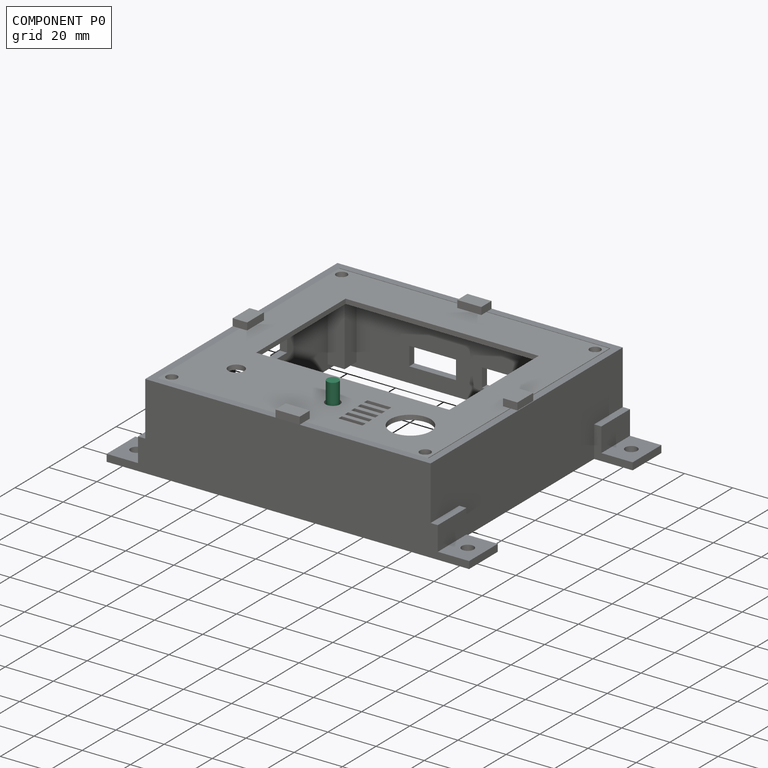
[diagram: component P0 — assembled]
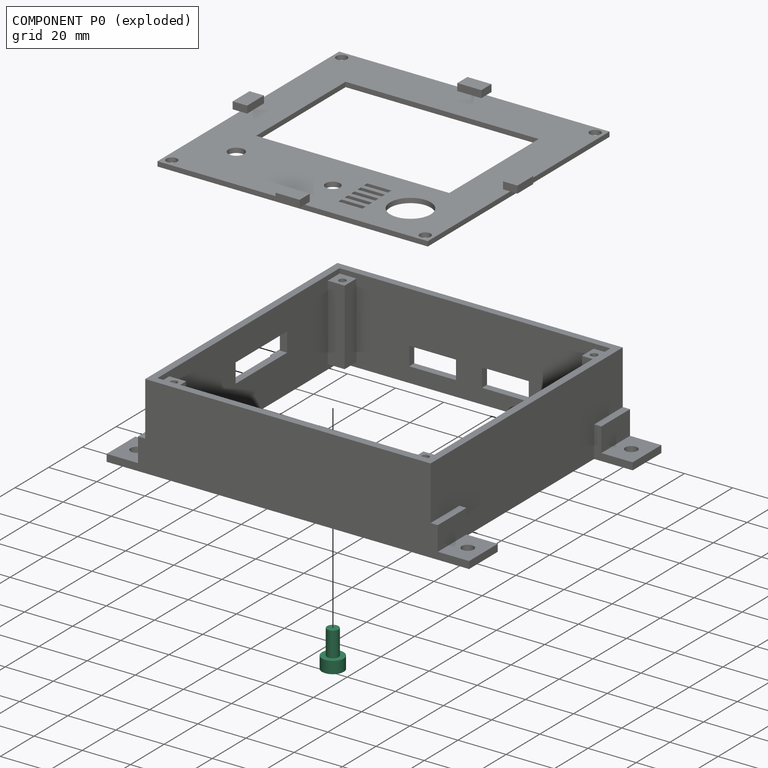
[diagram: component P0 — exploded]
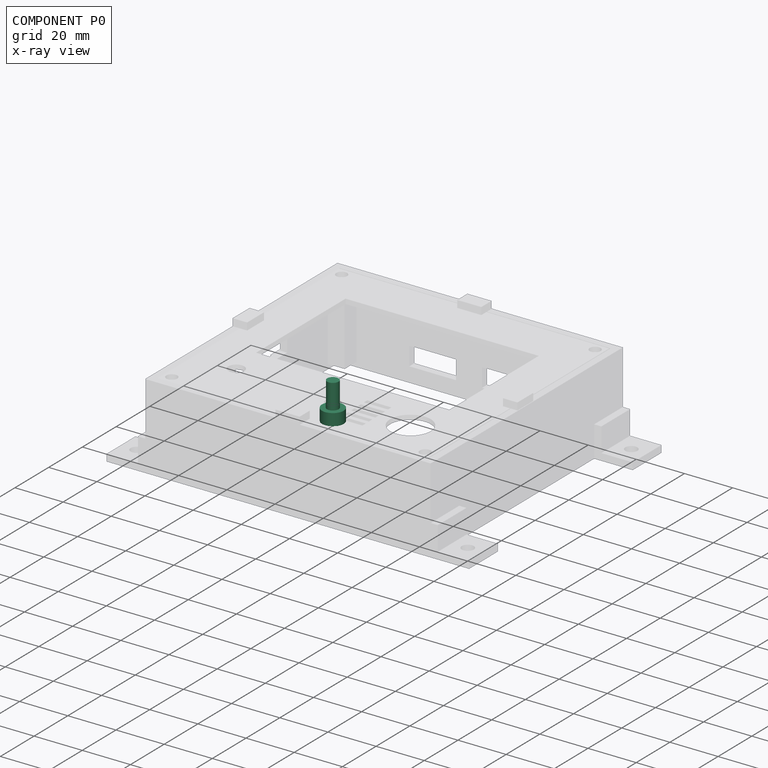
[diagram: component P0 — x-ray view]
COMPONENT P0 — recipe-attached (CADFS 00525691, mesh-verified: the recipe's output STEP matches this component's geometry to below the mesh-comparison resolution (tessellation chordal tolerance ~0.0299 mm)).
Held by: PARALLEL mate "Parallel 2" to P2.
Construction recipe (FeatureScript — the CAD program that rebuilds this solid; sketch coordinates are in the units given by the * unit suffixes, e.g. mm):

FeatureScript 1511;
import(path : "onshape/std/geometry.fs", version : "1511.0");
import(path : "onshape/std/common.fs", version : "1511.0");
const mm = millimeter;
const VERTEX = EntityType.VERTEX;
const EDGE = EntityType.EDGE;
const FACE = EntityType.FACE;
const BODY = EntityType.BODY;
function v(x, y){return vector(x, y);}
function OD(order){return orderDisambiguation(order);}
function OSD(set){return originalSetDisambiguation(set);}
function TD(topology){return topologyDisambiguation(topology);}
function TDD(query){return trueDependencyDisambiguation(query);}
function sQuery(a, b, c) {return sketchEntityQuery(a, b, c);}

annotation { "Feature Type Name" : "Feature", "Feature Type Description" : "" }
export const myFeature = defineFeature(function(context is Context, id is Id, definition is map)
    precondition{}
    {
        {
            var Q0;
            Q0=qCreatedBy(makeId("Top.planeOp"),FACE);
            var sketch = newSketch(context, id + "F0", { "sketchPlane" : qUnion([Q0])});
            skCircle(sketch, "E0", {"center": v(0, 0) * mm, "radius": 4.5 * mm});
            skCircle(sketch, "E1", {"center": v(0, 0) * mm, "radius": 2.4 * mm});
            skSolve(sketch);
        }
        {
            var Q0;
            Q0=makeQuery(id+"F0.imprint","IMPRINT",FACE,{"disambiguationData":[TD([[makeQuery(id+"F0.imprint","IMPRINT",EDGE,{"derivedFrom":sQuery(id+"F0.wireOp",EDGE,"E1")}),1.0]])]});
            extrude(context, id + "F1", {"entities" : qUnion([Q0]), "depth" : 10.36 * mm, "offsetDistance" : 25 * mm});
        }
        {
            var Q0;
            Q0 = qSketchRegion(id + "F0", true);
            var Q1;
            Q1=makeQuery(id+"F1.opExtrude","CAP_FACE",FACE,{"disambiguationData":[OSD([sQuery(id+"F0.wireOp",EDGE,"E1")])],"isStart":true});
            extrude(context, id + "F2", {"entities" : qUnion([Q0, Q1]), "operationType" : NewBodyOperationType.ADD, "oppositeDirection" : true, "depth" : 5 * mm, "offsetDistance" : 25 * mm});
        }
        {
            var Q0;
            {var subQ0=sQuery(id+"F0.wireOp",EDGE,"E1");Q0=makeQuery(id+"F2.boolean.opBoolean","MERGE",FACE,{"derivedFrom":[makeQuery(id+"F2.opExtrude","CAP_FACE",FACE,{"disambiguationData":[OSD([sQuery(id+"F0.wireOp",EDGE,"E0"),subQ0])],"isStart":false}),makeQuery(id+"F2.opExtrude","CAP_FACE",FACE,{"disambiguationData":[OSD([subQ0])],"isStart":false})]});}
            var sketch = newSketch(context, id + "F3", { "sketchPlane" : qUnion([Q0])});
            skCircle(sketch, "E2", {"center": v(0, 0) * mm, "radius": 3 * mm});
            skSolve(sketch);
        }
        {
            var Q0;
            Q0=makeQuery(id+"F3.imprint","IMPRINT",FACE,{"disambiguationData":[TD([[makeQuery(id+"F3.imprint","IMPRINT",EDGE,{"derivedFrom":sQuery(id+"F3.wireOp",EDGE,"E2")}),1.0]])]});
            extrude(context, id + "F4", {"entities" : qUnion([Q0]), "operationType" : NewBodyOperationType.REMOVE, "oppositeDirection" : true, "depth" : 3 * mm, "offsetDistance" : 25 * mm});
        }
    });
PROVENANCE & LICENSES
Assembly (occurrences, transforms, mates, per-part STEP geometry): AutoMate dataset, Zenodo record 7776208, CC0.
Construction recipes: CADFS (HuggingFace VladPyatov/CADFS, CC-BY-4.0, layered over the ABC dataset), FeatureScript reconstruction programs keyed by ABC model id.
Join: ABC meta listings map ABC model id -> Onshape documentId; within a shared document, parts are matched by geometric signature (bounding-box dims + volume at 0.1% relative tolerance, exact B-rep face/solid counts).
Verification: 3 of this assembly's 3 components carry a recipe attachment, and every attachment is mesh-verified: the CADFS STEP and the AutoMate member STEP were compared as meshes in their shared local frame (symmetric sampled-point-to-mesh distance); worst across the 3 attachments: below the mesh-comparison resolution (tessellation chordal tolerance ~0.288 mm) on a 192 mm part.
Renders: orthographic iso camera (az 35 / el 25); the floor grid conveys scale (grid pitch printed in each image; no ruler). In the exploded view each component is displaced by its stored offset vector: the offsets alone carry the explosion direction (mate normal/axis signs are not orientation cues and do not encode it), and separation distances are assigned per mate-chain, not proportionally to assembly-order depth.
